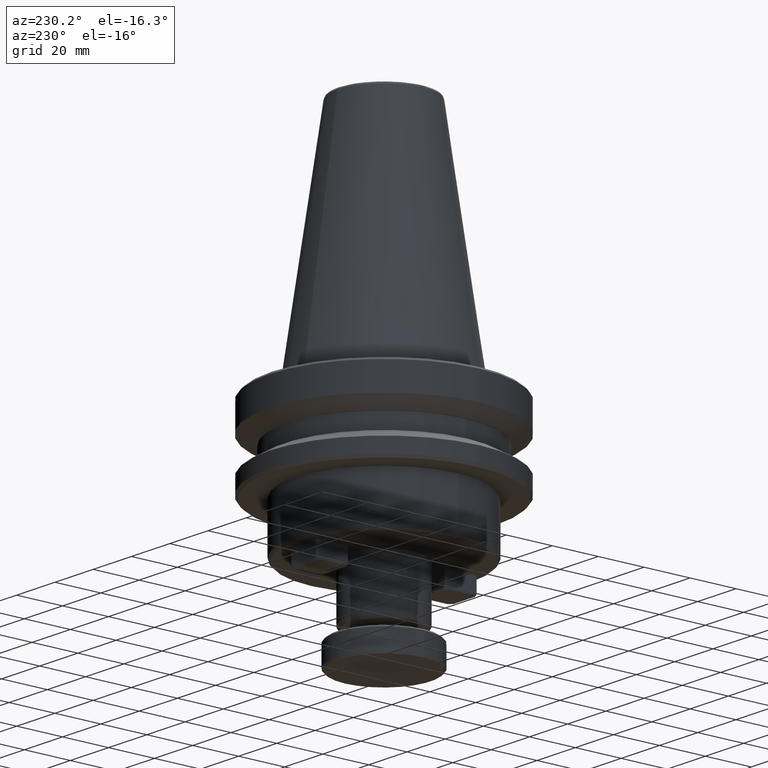
[diagram: clean part render]
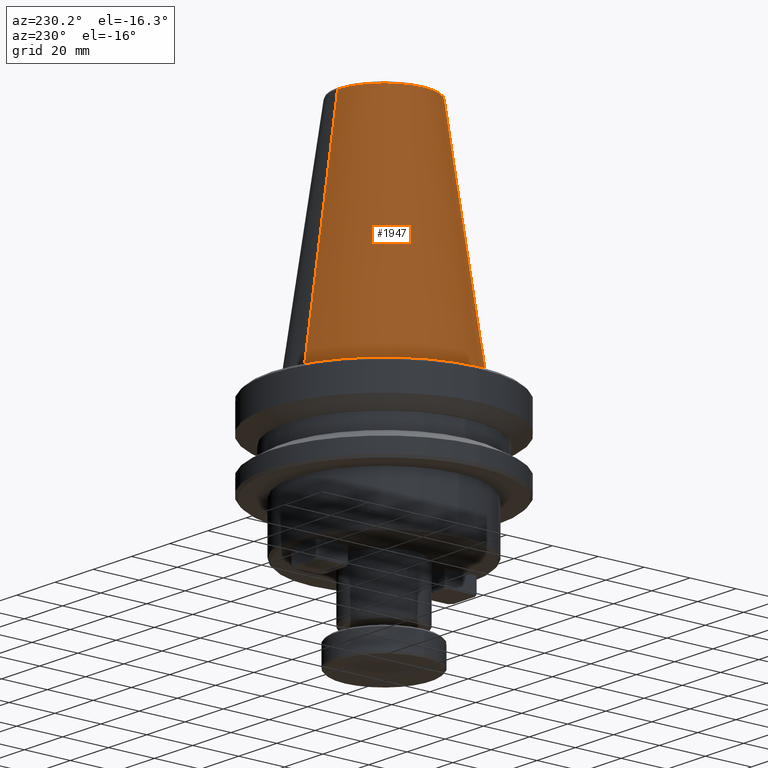
[diagram: same view with one face highlighted and labeled with its STEP entity id]
A machine part, auxiliary view. The second image highlights one B-rep face of the part: STEP entity #1947.
In plain terms, the highlighted conical surface has half-angle 8.297 deg.
Its self-contained STEP definition (entity closure, byte-faithful):
#38 = CARTESIAN_POINT ( 'NONE',  ( 0.0000000000000000000, 34.92499999999999700, 0.0000000000000000000 ) ) ;
#143 = AXIS2_PLACEMENT_3D ( 'NONE', #1039, #1036, #1034 ) ;
#191 = CIRCLE ( 'NONE', #143, 20.20381605152244500 ) ;
#479 = EDGE_LOOP ( 'NONE', ( #876, #2705, #2571, #2052, #701, #1325 ) ) ;
#518 = AXIS2_PLACEMENT_3D ( 'NONE', #2540, #2537, #2535 ) ;
#562 = AXIS2_PLACEMENT_3D ( 'NONE', #2426, #2423, #2428 ) ;
#670 = EDGE_CURVE ( 'NONE', #1338, #1683, #2180, .T. ) ;
#701 = ORIENTED_EDGE ( 'NONE', *, *, #670, .T. ) ;
#876 = ORIENTED_EDGE ( 'NONE', *, *, #1894, .F. ) ;
#975 = DIRECTION ( 'NONE',  ( 0.0000000000000000000, 0.1443082272673000500, -0.9895327864921754600 ) ) ;
#980 = CARTESIAN_POINT ( 'NONE',  ( 0.0000000000000000000, 34.92499999999999700, -1.235024670767087400E-014 ) ) ;
#1025 = CIRCLE ( 'NONE', #518, 34.92499999999999700 ) ;
#1034 = DIRECTION ( 'NONE',  ( -1.000000000000000000, 0.0000000000000000000, 0.0000000000000000000 ) ) ;
#1036 = DIRECTION ( 'NONE',  ( 0.0000000000000000000, 0.0000000000000000000, -1.000000000000000000 ) ) ;
#1039 = CARTESIAN_POINT ( 'NONE',  ( 0.0000000000000000000, 0.0000000000000000000, 100.9443082272672700 ) ) ;
#1143 = CARTESIAN_POINT ( 'NONE',  ( -20.20381605152244500, 2.474253865805887700E-015, 100.9443082272672700 ) ) ;
#1144 = CARTESIAN_POINT ( 'NONE',  ( -34.92499999999999700, 4.277078946022130900E-015, 0.0000000000000000000 ) ) ;
#1202 = CONICAL_SURFACE ( 'NONE', #562, 34.92499999999999700, 0.1448138465474120300 ) ;
#1325 = ORIENTED_EDGE ( 'NONE', *, *, #1855, .T. ) ;
#1338 = VERTEX_POINT ( 'NONE', #38 ) ;
#1423 = DIRECTION ( 'NONE',  ( -0.0000000000000000000, -0.0000000000000000000, 1.000000000000000000 ) ) ;
#1433 = CARTESIAN_POINT ( 'NONE',  ( 3.375666405914009500E-015, -20.20381605152244500, 100.9443082272672700 ) ) ;
#1470 = CARTESIAN_POINT ( 'NONE',  ( 4.277078946022130900E-015, -34.92499999999999700, 0.0000000000000000000 ) ) ;
#1503 = CIRCLE ( 'NONE', #2506, 20.20381605152244500 ) ;
#1541 = VERTEX_POINT ( 'NONE', #1898 ) ;
#1567 = LINE ( 'NONE', #980, #2225 ) ;
#1611 = VERTEX_POINT ( 'NONE', #1433 ) ;
#1683 = VERTEX_POINT ( 'NONE', #1144 ) ;
#1719 = DIRECTION ( 'NONE',  ( -1.000000000000000000, 0.0000000000000000000, 0.0000000000000000000 ) ) ;
#1721 = DIRECTION ( 'NONE',  ( 0.0000000000000000000, 0.0000000000000000000, -1.000000000000000000 ) ) ;
#1723 = CARTESIAN_POINT ( 'NONE',  ( 0.0000000000000000000, 0.0000000000000000000, 100.9443082272672700 ) ) ;
#1855 = EDGE_CURVE ( 'NONE', #1683, #2498, #1025, .T. ) ;
#1894 = EDGE_CURVE ( 'NONE', #1611, #2498, #2240, .T. ) ;
#1898 = CARTESIAN_POINT ( 'NONE',  ( 0.0000000000000000000, 20.20381605152244500, 100.9443082272672700 ) ) ;
#1947 = ADVANCED_FACE ( 'NONE', ( #2594 ), #1202, .T. ) ;
#2052 = ORIENTED_EDGE ( 'NONE', *, *, #2731, .T. ) ;
#2122 = CARTESIAN_POINT ( 'NONE',  ( 0.0000000000000000000, 0.0000000000000000000, 0.0000000000000000000 ) ) ;
#2180 = CIRCLE ( 'NONE', #2650, 34.92499999999999700 ) ;
#2225 = VECTOR ( 'NONE', #975, 1000.000000000000000 ) ;
#2240 = LINE ( 'NONE', #2507, #2734 ) ;
#2280 = EDGE_CURVE ( 'NONE', #1611, #2559, #1503, .T. ) ;
#2423 = DIRECTION ( 'NONE',  ( 0.0000000000000000000, 2.205789485339712300E-032, -1.000000000000000000 ) ) ;
#2426 = CARTESIAN_POINT ( 'NONE',  ( 0.0000000000000000000, 0.0000000000000000000, -1.235024670767087600E-014 ) ) ;
#2428 = DIRECTION ( 'NONE',  ( 0.0000000000000000000, 1.000000000000000000, 4.411578970679424000E-032 ) ) ;
#2498 = VERTEX_POINT ( 'NONE', #1470 ) ;
#2506 = AXIS2_PLACEMENT_3D ( 'NONE', #1723, #1721, #1719 ) ;
#2507 = CARTESIAN_POINT ( 'NONE',  ( 4.277078946022130900E-015, -34.92499999999999700, -1.235024670767087800E-014 ) ) ;
#2512 = DIRECTION ( 'NONE',  ( 1.767266086135278000E-017, -0.1443082272673000500, -0.9895327864921754600 ) ) ;
#2535 = DIRECTION ( 'NONE',  ( -1.000000000000000000, 0.0000000000000000000, -3.611427007686981100E-016 ) ) ;
#2537 = DIRECTION ( 'NONE',  ( -0.0000000000000000000, -0.0000000000000000000, 1.000000000000000000 ) ) ;
#2540 = CARTESIAN_POINT ( 'NONE',  ( 0.0000000000000000000, 0.0000000000000000000, 0.0000000000000000000 ) ) ;
#2559 = VERTEX_POINT ( 'NONE', #1143 ) ;
#2562 = DIRECTION ( 'NONE',  ( -1.000000000000000000, -8.881784197001252300E-016, -3.611427007686981100E-016 ) ) ;
#2571 = ORIENTED_EDGE ( 'NONE', *, *, #2670, .T. ) ;
#2594 = FACE_OUTER_BOUND ( 'NONE', #479, .T. ) ;
#2650 = AXIS2_PLACEMENT_3D ( 'NONE', #2122, #1423, #2562 ) ;
#2670 = EDGE_CURVE ( 'NONE', #2559, #1541, #191, .T. ) ;
#2705 = ORIENTED_EDGE ( 'NONE', *, *, #2280, .T. ) ;
#2731 = EDGE_CURVE ( 'NONE', #1541, #1338, #1567, .T. ) ;
#2734 = VECTOR ( 'NONE', #2512, 1000.000000000000000 ) ;